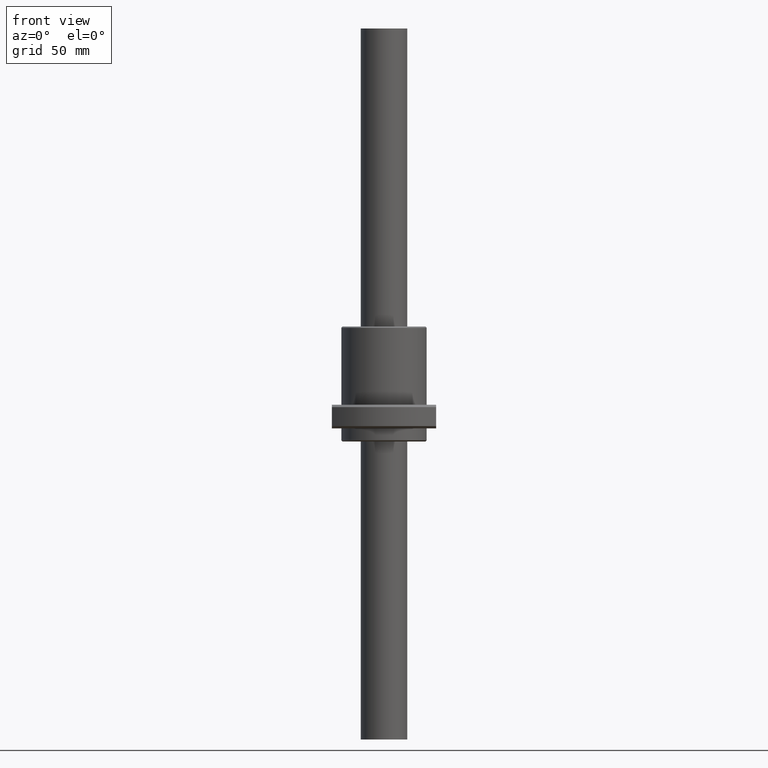
[diagram: clean part render]
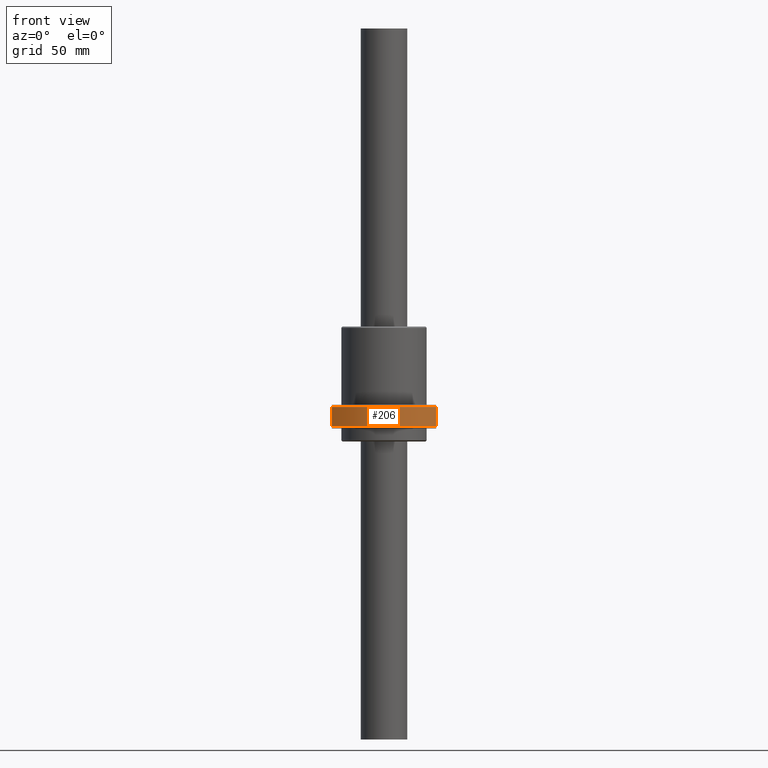
[diagram: same view with one face highlighted and labeled with its STEP entity id]
A machine part, front view. The second image highlights one B-rep face of the part: STEP entity #206.
In plain terms, the highlighted cylindrical surface (partial cylindrical patch) has radius 29 mm, axis along (0, 0, -1).
Its self-contained STEP definition (entity closure, byte-faithful):
#150 = VECTOR ( 'NONE', #1076, 1000.000000000000000 ) ;
#194 = ORIENTED_EDGE ( 'NONE', *, *, #383, .F. ) ;
#206 = ADVANCED_FACE ( 'NONE', ( #1134 ), #985, .T. ) ;
#212 = VERTEX_POINT ( 'NONE', #530 ) ;
#383 = EDGE_CURVE ( 'NONE', #212, #575, #1487, .T. ) ;
#530 = CARTESIAN_POINT ( 'NONE',  ( -22.00000000000000000, -18.89444362784559700, -6.500000000100602200 ) ) ;
#575 = VERTEX_POINT ( 'NONE', #1727 ) ;
#598 = DIRECTION ( 'NONE',  ( 0.0000000000000000000, -0.0000000000000000000, 1.000000000000000000 ) ) ;
#669 = CARTESIAN_POINT ( 'NONE',  ( 0.0000000000000000000, 0.0000000000000000000, -14.50000000000000000 ) ) ;
#742 = EDGE_CURVE ( 'NONE', #575, #1293, #1531, .T. ) ;
#823 = EDGE_LOOP ( 'NONE', ( #194, #1116, #1776, #1705 ) ) ;
#859 = AXIS2_PLACEMENT_3D ( 'NONE', #1193, #1192, #1190 ) ;
#972 = DIRECTION ( 'NONE',  ( 1.000000000000000000, 0.0000000000000000000, 0.0000000000000000000 ) ) ;
#980 = CARTESIAN_POINT ( 'NONE',  ( 22.00000000000000000, -18.89444362784559700, -14.49999999989940000 ) ) ;
#985 = CYLINDRICAL_SURFACE ( 'NONE', #1279, 29.00000000000000000 ) ;
#996 = DIRECTION ( 'NONE',  ( 0.0000000000000000000, 0.0000000000000000000, 1.000000000000000000 ) ) ;
#1025 = CARTESIAN_POINT ( 'NONE',  ( 0.0000000000000000000, 0.0000000000000000000, -6.500000000000000900 ) ) ;
#1063 = VERTEX_POINT ( 'NONE', #1205 ) ;
#1076 = DIRECTION ( 'NONE',  ( 0.0000000000000000000, 0.0000000000000000000, 1.000000000000000000 ) ) ;
#1078 = CARTESIAN_POINT ( 'NONE',  ( -22.00000000000000000, -18.89444362800000500, -10.49999999999999800 ) ) ;
#1079 = LINE ( 'NONE', #1078, #150 ) ;
#1080 = EDGE_CURVE ( 'NONE', #1293, #1063, #1571, .T. ) ;
#1116 = ORIENTED_EDGE ( 'NONE', *, *, #1167, .F. ) ;
#1134 = FACE_OUTER_BOUND ( 'NONE', #823, .T. ) ;
#1161 = VECTOR ( 'NONE', #1521, 1000.000000000000000 ) ;
#1167 = EDGE_CURVE ( 'NONE', #1063, #212, #1079, .T. ) ;
#1190 = DIRECTION ( 'NONE',  ( 1.000000000000000000, 0.0000000000000000000, 0.0000000000000000000 ) ) ;
#1192 = DIRECTION ( 'NONE',  ( -0.0000000000000000000, -0.0000000000000000000, -1.000000000000000000 ) ) ;
#1193 = CARTESIAN_POINT ( 'NONE',  ( 0.0000000000000000000, 0.0000000000000000000, -14.50000000000000000 ) ) ;
#1205 = CARTESIAN_POINT ( 'NONE',  ( -22.00000000000000000, -18.89444362768589200, -14.50000000010405200 ) ) ;
#1279 = AXIS2_PLACEMENT_3D ( 'NONE', #669, #598, #1559 ) ;
#1293 = VERTEX_POINT ( 'NONE', #980 ) ;
#1487 = CIRCLE ( 'NONE', #1558, 28.99999999999999600 ) ;
#1521 = DIRECTION ( 'NONE',  ( -0.0000000000000000000, -0.0000000000000000000, -1.000000000000000000 ) ) ;
#1522 = CARTESIAN_POINT ( 'NONE',  ( 22.00000000000000000, -18.89444362800000500, -10.49999999999999800 ) ) ;
#1531 = LINE ( 'NONE', #1522, #1161 ) ;
#1558 = AXIS2_PLACEMENT_3D ( 'NONE', #1025, #996, #972 ) ;
#1559 = DIRECTION ( 'NONE',  ( 1.000000000000000000, 0.0000000000000000000, 0.0000000000000000000 ) ) ;
#1571 = CIRCLE ( 'NONE', #859, 28.99999999999999600 ) ;
#1705 = ORIENTED_EDGE ( 'NONE', *, *, #742, .F. ) ;
#1727 = CARTESIAN_POINT ( 'NONE',  ( 22.00000000000000000, -18.89444362724068000, -6.499999999605877900 ) ) ;
#1776 = ORIENTED_EDGE ( 'NONE', *, *, #1080, .F. ) ;